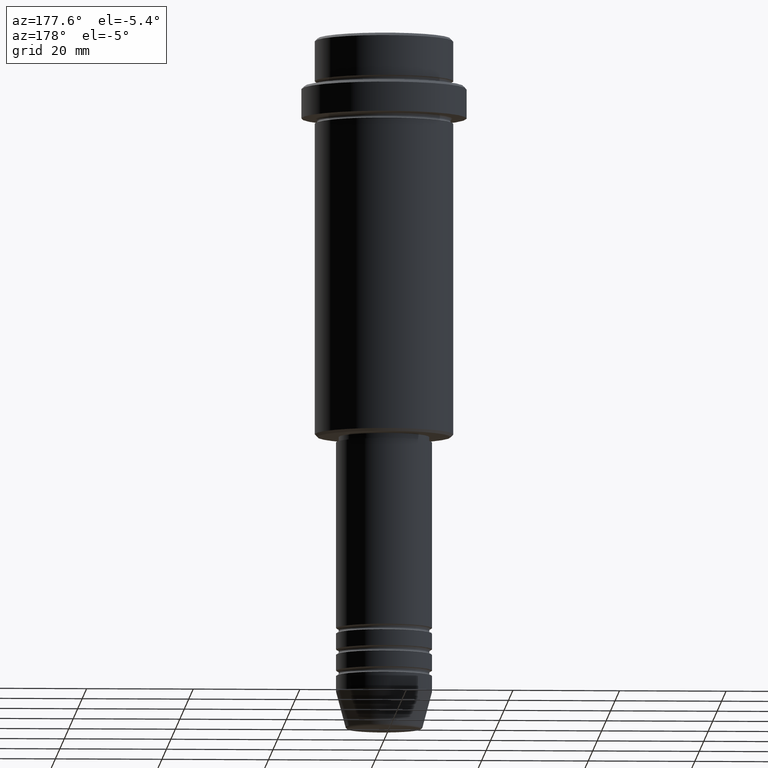
[diagram: clean part render]
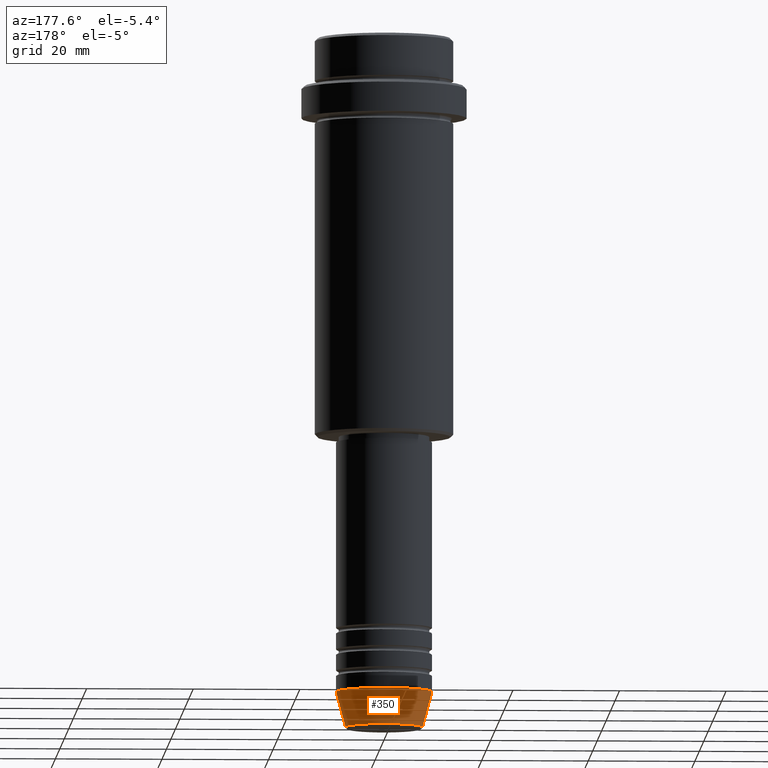
[diagram: same view with one face highlighted and labeled with its STEP entity id]
A machine part, auxiliary view. The second image highlights one B-rep face of the part: STEP entity #350.
In plain terms, the highlighted conical surface has half-angle 15 deg.
Its self-contained STEP definition (entity closure, byte-faithful):
#71 = VERTEX_POINT ( 'NONE', #735 ) ;
#135 = AXIS2_PLACEMENT_3D ( 'NONE', #462, #271, #696 ) ;
#164 = ORIENTED_EDGE ( 'NONE', *, *, #720, .F. ) ;
#202 = AXIS2_PLACEMENT_3D ( 'NONE', #355, #1343, #919 ) ;
#271 = DIRECTION ( 'NONE',  ( -0.000000000000000000, -0.000000000000000000, 1.000000000000000000 ) ) ;
#272 = VERTEX_POINT ( 'NONE', #369 ) ;
#307 = LINE ( 'NONE', #1204, #1251 ) ;
#350 = ADVANCED_FACE ( 'NONE', ( #797 ), #721, .T. ) ;
#355 = CARTESIAN_POINT ( 'NONE',  ( 0.000000000000000000, 0.000000000000000000, -123.0000000000000000 ) ) ;
#369 = CARTESIAN_POINT ( 'NONE',  ( -9.000000000000000000, 1.102182119232617714E-15, -123.0000000000000000 ) ) ;
#382 = CARTESIAN_POINT ( 'NONE',  ( 0.000000000000000000, 0.000000000000000000, -129.6294095225512706 ) ) ;
#440 = ORIENTED_EDGE ( 'NONE', *, *, #972, .F. ) ;
#462 = CARTESIAN_POINT ( 'NONE',  ( 0.000000000000000000, 0.000000000000000000, -123.0000000000000000 ) ) ;
#483 = CARTESIAN_POINT ( 'NONE',  ( -9.000000000000000000, 1.102182119232617714E-15, -123.0000000000000000 ) ) ;
#564 = EDGE_CURVE ( 'NONE', #799, #71, #1328, .T. ) ;
#566 = CARTESIAN_POINT ( 'NONE',  ( 7.223655072137188604, 0.000000000000000000, -129.6294095225512706 ) ) ;
#598 = DIRECTION ( 'NONE',  ( -0.000000000000000000, -0.000000000000000000, 1.000000000000000000 ) ) ;
#674 = CARTESIAN_POINT ( 'NONE',  ( 9.000000000000000000, 0.000000000000000000, -123.0000000000000000 ) ) ;
#696 = DIRECTION ( 'NONE',  ( 1.000000000000000000, 0.000000000000000000, 0.000000000000000000 ) ) ;
#700 = ORIENTED_EDGE ( 'NONE', *, *, #564, .T. ) ;
#720 = EDGE_CURVE ( 'NONE', #817, #272, #1283, .T. ) ;
#721 = CONICAL_SURFACE ( 'NONE', #135, 9.000000000000000000, 0.2617993877991500740 ) ;
#735 = CARTESIAN_POINT ( 'NONE',  ( -7.223655072137189492, 9.934123627281765110E-16, -129.6294095225512706 ) ) ;
#771 = AXIS2_PLACEMENT_3D ( 'NONE', #382, #598, #823 ) ;
#797 = FACE_OUTER_BOUND ( 'NONE', #904, .T. ) ;
#799 = VERTEX_POINT ( 'NONE', #566 ) ;
#817 = VERTEX_POINT ( 'NONE', #674 ) ;
#823 = DIRECTION ( 'NONE',  ( 1.000000000000000000, 0.000000000000000000, 0.000000000000000000 ) ) ;
#833 = EDGE_CURVE ( 'NONE', #71, #272, #944, .T. ) ;
#846 = DIRECTION ( 'NONE',  ( -0.2588190451025213501, 3.169619151431772337E-17, 0.9659258262890680902 ) ) ;
#904 = EDGE_LOOP ( 'NONE', ( #700, #1051, #164, #440 ) ) ;
#919 = DIRECTION ( 'NONE',  ( 1.000000000000000000, 0.000000000000000000, 0.000000000000000000 ) ) ;
#944 = LINE ( 'NONE', #483, #1329 ) ;
#972 = EDGE_CURVE ( 'NONE', #799, #817, #307, .T. ) ;
#1051 = ORIENTED_EDGE ( 'NONE', *, *, #833, .T. ) ;
#1204 = CARTESIAN_POINT ( 'NONE',  ( 9.000000000000000000, 0.000000000000000000, -123.0000000000000000 ) ) ;
#1251 = VECTOR ( 'NONE', #1300, 1000.000000000000000 ) ;
#1283 = CIRCLE ( 'NONE', #202, 9.000000000000000000 ) ;
#1300 = DIRECTION ( 'NONE',  ( 0.2588190451025213501, 0.000000000000000000, 0.9659258262890680902 ) ) ;
#1328 = CIRCLE ( 'NONE', #771, 7.223655072137188604 ) ;
#1329 = VECTOR ( 'NONE', #846, 1000.000000000000000 ) ;
#1343 = DIRECTION ( 'NONE',  ( -0.000000000000000000, -0.000000000000000000, 1.000000000000000000 ) ) ;